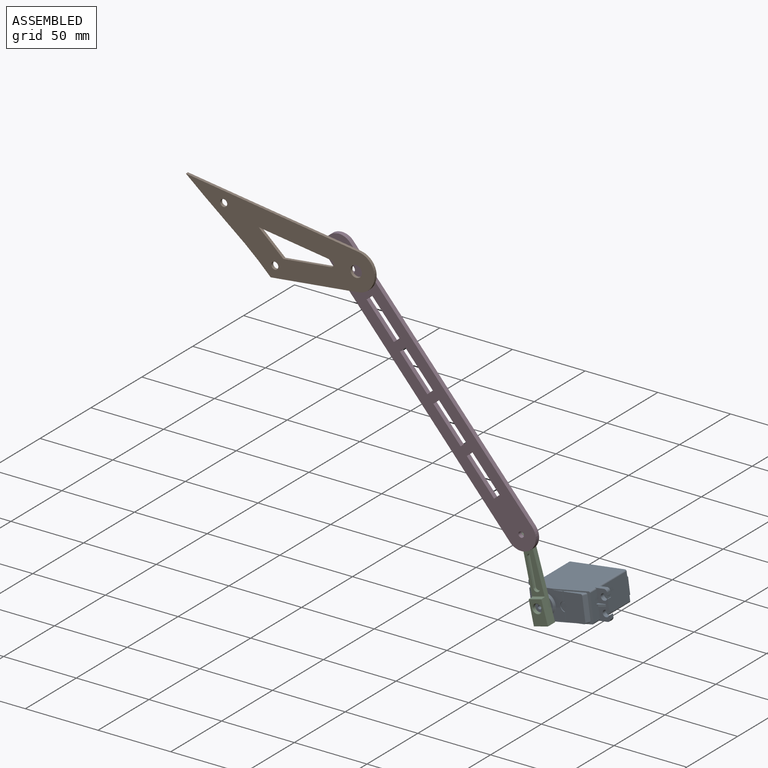
[diagram: assembled view]
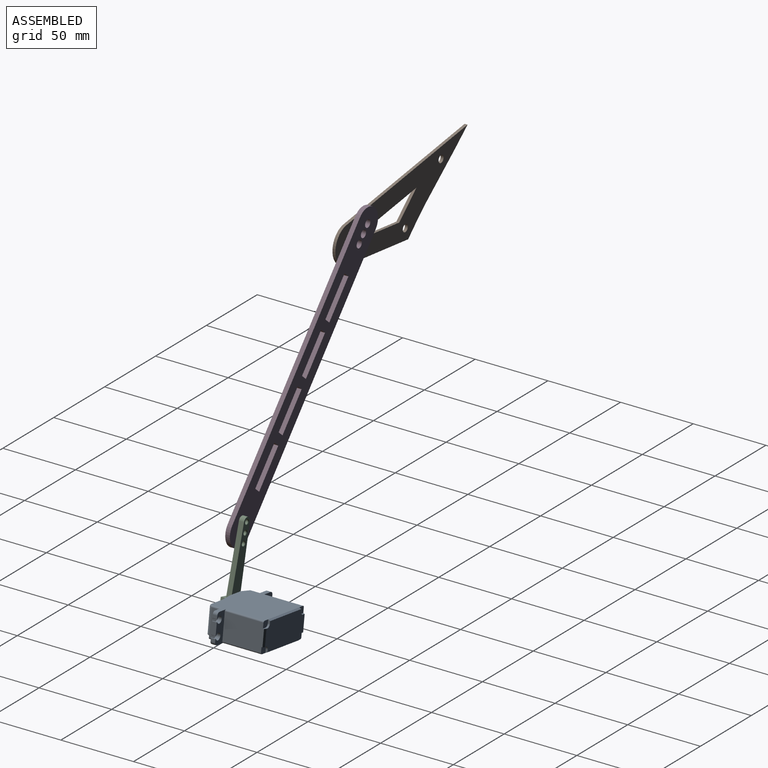
[diagram: assembled view, second angle]
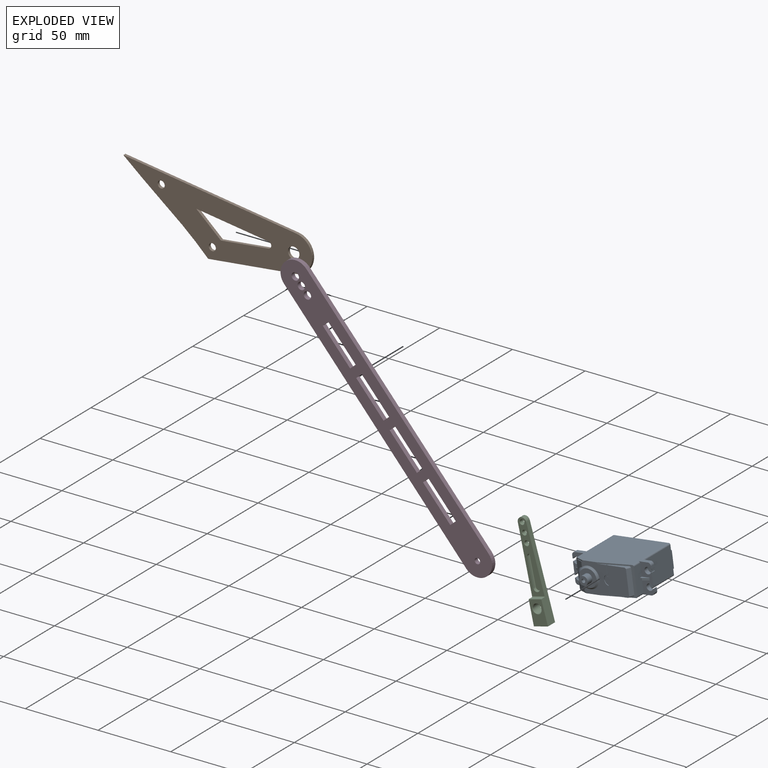
[diagram: exploded view]
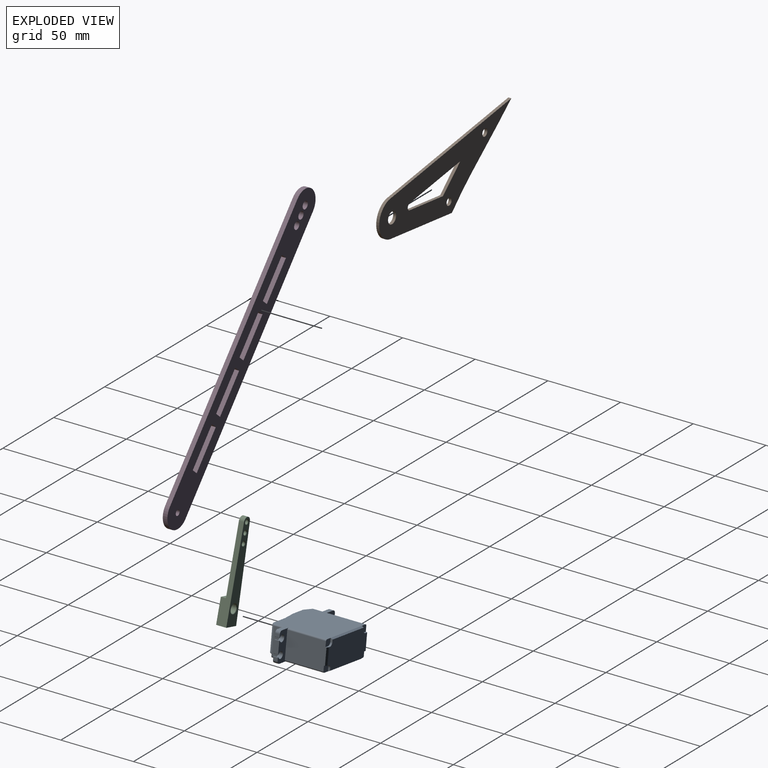
[diagram: exploded view, second angle]
ASSEMBLY  parts=4 mates=2
PART A: 134 faces, bbox 54.6x46.2x20 mm
  f0: plane 20x16.9mm, normal (0,-1,0), area 174.7mm2, adj f17,f19,f67,f68,f69,f70,f79,f80
  f1: plane 8.18x4.66mm, normal (0.45,-0.89,0), area 25.2mm2, adj f66,f67,f110,f112,f120
  f2: plane 23.43x20mm, normal (-0.14,-0.99,0), area 74.5mm2, adj f17,f19,f24,f69,f70,f71,f105,f108
  f3: plane 20x6.29mm, normal (0.45,-0.89,0), area 29.3mm2, adj f17,f19,f27,f66,f67,f68,f106,f109
  f4: plane 3.13x2mm, normal (-1,0,0), area 6.3mm2, adj f15,f25,f60,f126
  f5: plane 8x3.13mm, normal (-1,0,0), area 25mm2, adj f15,f25,f55,f58
  f6: plane 3.13x2mm, normal (1,0,0), area 6.3mm2, adj f23,f26,f48,f128
  f7: plane 8x3.13mm, normal (1,0,0), area 25mm2, adj f23,f26,f44,f47
  f8: plane 38x6.6mm, normal (0,0,1), area 250.8mm2, adj f12,f30,f39,f96,f102,f130
  f9: plane 20x18mm, normal (-1,0,0), area 360mm2, adj f14,f15,f95,f97
  f10: plane 20x18mm, normal (1,0,0), area 360mm2, adj f22,f23,f99,f101
  f11: plane 38x6.6mm, normal (0,0,-1), area 250.8mm2, adj f13,f33,f36,f98,f100,f131
  f12: plane 38x20mm, normal (0,0,1), area 760mm2, adj f8,f19,f95,f101
  f13: plane 38x20mm, normal (0,0,-1), area 760mm2, adj f11,f17,f97,f99
  f14: plane 18x7.3mm, normal (-1,0,0), area 126.5mm2, adj f9,f35,f36,f37,f39,f96,f98,f132
  f15: plane 20x8.31mm, normal (0,1,0), area 111.9mm2, adj f4,f5,f9,f16,f17,f19,f55,f56
  f16: plane 3.13x2mm, normal (-1,0,0), area 6.3mm2, adj f15,f25,f56,f127
  f17: plane 50.61x12.5mm, normal (0,0,-1), area 471.9mm2, adj f0,f2,f3,f13,f15,f23,f25,f26
  f18: plane 3.13x2mm, normal (1,0,0), area 6.3mm2, adj f23,f26,f46,f129
  f19: plane 50.61x12.5mm, normal (0,0,1), area 471.9mm2, adj f0,f2,f3,f12,f15,f23,f25,f26
  f20: plane 18.3x15.3mm, normal (0,-1,0), area 243.8mm2, adj f69,f70,f71,f82,f83,f84,f103,f104
  f21: plane 37.9x18.6mm, normal (0,1,0), area 656.8mm2, adj f28,f29,f31,f32,f34,f35,f37,f38
  f22: plane 18x6.6mm, normal (1,0,0), area 90.8mm2, adj f10,f30,f33,f86,f87,f88,f89,f100
  f23: plane 20x8.31mm, normal (0,1,0), area 111.9mm2, adj f6,f7,f10,f17,f18,f19,f44,f45
  f24: plane 18x6.12mm, normal (-1,0,0), area 107.5mm2, adj f2,f25,f61,f64,f65,f116,f118
  f25: plane 20x8.31mm, normal (0,-1,0), area 103.7mm2, adj f4,f5,f16,f17,f19,f24,f55,f56
  f26: plane 20x8.31mm, normal (0,-1,0), area 103.7mm2, adj f6,f7,f17,f18,f19,f27,f44,f45
  f27: plane 18x6.12mm, normal (1,0,0), area 107.5mm2, adj f3,f26,f52,f53,f54,f111,f117
  f28: plane 2.25x1.4mm, normal (1,0,0), area 2.7mm2, adj f21,f30,f43,f130
  f29: plane 2.25x1.4mm, normal (0,0,1), area 2.7mm2, adj f21,f30,f43,f133
  f30: plane 4.5x4.5mm, normal (0,1,0), area 18.9mm2, adj f8,f22,f28,f29,f43,f102
  f31: plane 2.25x1.4mm, normal (0,0,-1), area 2.7mm2, adj f21,f33,f42,f133
  f32: plane 2.25x1.4mm, normal (1,0,0), area 2.7mm2, adj f21,f33,f42,f131
  f33: plane 4.5x4.5mm, normal (0,1,0), area 18.9mm2, adj f11,f22,f31,f32,f42,f100
  f34: plane 2.25x1.4mm, normal (-1,0,0), area 2.7mm2, adj f21,f36,f41,f131
  f35: plane 2.25x1.4mm, normal (0,0,-1), area 2.7mm2, adj f14,f21,f36,f41,f132
  f36: plane 4.5x4.5mm, normal (0,1,0), area 18.9mm2, adj f11,f14,f34,f35,f41,f98
  f37: plane 2.25x1.4mm, normal (0,0,1), area 2.7mm2, adj f14,f21,f39,f40,f132
  f38: plane 2.25x1.4mm, normal (-1,0,0), area 2.7mm2, adj f21,f39,f40,f130
  f39: plane 4.5x4.5mm, normal (0,1,0), area 18.9mm2, adj f8,f14,f37,f38,f40,f96
  f40: cylinder r=2.25mm len=2.25mm, axis (0,-1,0), area 4.9mm2, adj f21,f37,f38,f39
  f41: cylinder r=2.25mm len=2.25mm, axis (0,-1,0), area 4.9mm2, adj f21,f34,f35,f36
  f42: cylinder r=2.25mm len=2.25mm, axis (0,-1,0), area 4.9mm2, adj f21,f31,f32,f33
  f43: cylinder r=2.25mm len=2.25mm, axis (0,-1,0), area 4.9mm2, adj f21,f28,f29,f30
  f44: cylinder r=0.25mm len=3.13mm, axis (0,-1,0), area 2.2mm2, adj f7,f23,f26,f45
  f45: cylinder r=2.25mm len=4.5mm, axis (0,-1,0), area 38.5mm2, adj f23,f26,f44,f46
  f46: cylinder r=0.25mm len=3.13mm, axis (0,-1,0), area 2.2mm2, adj f18,f23,f26,f45
  f47: cylinder r=0.25mm len=3.13mm, axis (0,-1,0), area 2.2mm2, adj f7,f23,f26,f49
  f48: cylinder r=0.25mm len=3.13mm, axis (0,-1,0), area 2.2mm2, adj f6,f23,f26,f49
  f49: cylinder r=2.25mm len=4.5mm, axis (0,-1,0), area 38.5mm2, adj f23,f26,f47,f48
  f50: plane 1.5x0.35mm, normal (1,0,0), area 0.5mm2, adj f26,f51,f53,f54
  f51: plane 4.28x1.5mm, normal (0.31,-0.95,0), area 6.8mm2, adj f50,f52,f53,f54
  f52: plane 1.5x1.22mm, normal (0,-1,0), area 1.8mm2, adj f27,f51,f53,f54
  f53: plane 5.5x1.75mm, normal (0,0,-1), area 6.6mm2, adj f26,f27,f50,f51,f52
  f54: plane 5.5x1.75mm, normal (0,0,1), area 6.6mm2, adj f26,f27,f50,f51,f52
  f55: cylinder r=0.25mm len=3.13mm, axis (0,-1,0), area 2.2mm2, adj f5,f15,f25,f57
  f56: cylinder r=0.25mm len=3.13mm, axis (0,-1,0), area 2.2mm2, adj f15,f16,f25,f57
  f57: cylinder r=2.25mm len=4.5mm, axis (0,-1,0), area 38.5mm2, adj f15,f25,f55,f56
  f58: cylinder r=0.25mm len=3.13mm, axis (0,-1,0), area 2.2mm2, adj f5,f15,f25,f59
  f59: cylinder r=2.25mm len=4.5mm, axis (0,-1,0), area 38.5mm2, adj f15,f25,f58,f60
  f60: cylinder r=0.25mm len=3.13mm, axis (0,-1,0), area 2.2mm2, adj f4,f15,f25,f59
  f61: plane 1.5x1.22mm, normal (0,-1,0), area 1.8mm2, adj f24,f62,f64,f65
  f62: plane 4.28x1.5mm, normal (-0.31,-0.95,0), area 6.8mm2, adj f61,f63,f64,f65
  f63: plane 1.5x0.35mm, normal (-1,0,0), area 0.5mm2, adj f25,f62,f64,f65
  f64: plane 5.5x1.75mm, normal (0,0,-1), area 6.6mm2, adj f24,f25,f61,f62,f63
  f65: plane 5.5x1.75mm, normal (0,0,1), area 6.6mm2, adj f24,f25,f61,f62,f63
  f66: plane 16.3x0.39mm, normal (1,0,0), area 6.4mm2, adj f1,f3,f72,f112,f113,f119,f121
  f67: plane 4.89x2.33mm, normal (0,0,-1), area 1.7mm2, adj f0,f1,f3,f109,f110,f112
  f68: plane 4.89x2.33mm, normal (0,0,1), area 1.7mm2, adj f0,f3,f72,f106,f107,f113
  f69: plane 20.52x2.83mm, normal (0,0,-1), area 26.4mm2, adj f0,f2,f20,f81,f82,f85,f108,f115
  f70: plane 20.52x2.83mm, normal (0,0,1), area 26.4mm2, adj f0,f2,f20,f79,f84,f85,f105,f114
  f71: plane 16.3x2.99mm, normal (-0.89,-0.45,0), area 54.6mm2, adj f2,f20,f114,f115
  f72: plane 8.18x4.66mm, normal (0.45,-0.89,0), area 25.2mm2, adj f66,f68,f107,f113,f123
  f73: plane 12x12mm, normal (0,-1,0), area 84.8mm2, adj f74,f75
  f74: cone r=6mm half-angle=40.9deg, axis (0,1,0), area 84.8mm2, adj f73,f119,f120,f121,f122,f123,f124,f125
  f75: cylinder r=3mm len=6mm, axis (0,1,0), area 84.8mm2, adj f73,f76
  f76: plane 6x6mm, normal (0,-1,0), area 23.4mm2, adj f75,f78
  f77: cone r=1.25mm half-angle=59deg, axis (0,-1,0), area 5.7mm2, adj f78
  f78: cylinder r=1.25mm len=10mm, axis (0,-1,0), area 78.5mm2, adj f76,f77
  f79: plane 5.8x0.5mm, normal (-1,0,0), area 2.9mm2, adj f0,f70,f80,f85
  f80: cylinder r=3.5mm len=6.71mm, axis (0,-1,0), area 4.5mm2, adj f0,f79,f81,f85
  f81: plane 5.8x0.5mm, normal (-1,0,0), area 2.9mm2, adj f0,f69,f80,f85
  f82: plane 5.8x0.5mm, normal (1,0,0), area 2.9mm2, adj f20,f69,f85,f103
  f83: cylinder r=2.5mm len=4.79mm, axis (0,-1,0), area 3.2mm2, adj f20,f85,f103,f104
  f84: plane 5.8x0.5mm, normal (1,0,0), area 2.9mm2, adj f20,f70,f85,f104
  f85: plane 18.3x3.5mm, normal (0,-1,0), area 20.6mm2, adj f69,f70,f79,f80,f81,f82,f83,f84
  f86: plane 7x1mm, normal (0,1,0), area 7mm2, adj f22,f87,f89,f91
  f87: plane 4x1mm, normal (0,0,1), area 4mm2, adj f22,f86,f88,f93
  f88: plane 7x1mm, normal (0,-1,0), area 7mm2, adj f22,f87,f89,f92
  f89: plane 4x1mm, normal (0,0,-1), area 4mm2, adj f22,f86,f88,f94
  f90: plane 6x2.5mm, normal (1,0,0), area 15mm2, adj f91,f92,f93,f94
  f91: plane 7x2.25mm, normal (0.32,0.95,0), area 15.4mm2, adj f86,f90,f93,f94
  f92: plane 7x2.25mm, normal (0.32,-0.95,0), area 15.4mm2, adj f88,f90,f93,f94
  f93: plane 4x2.25mm, normal (0.22,0,0.98), area 7.5mm2, adj f87,f90,f91,f92
  f94: plane 4x2.25mm, normal (0.22,0,-0.98), area 7.5mm2, adj f89,f90,f91,f92
  f95: cylinder r=1mm len=20mm, axis (0,1,0), area 31.4mm2, adj f9,f12,f15,f96
  f96: cylinder r=1mm len=6.6mm, axis (0,1,0), area 10.4mm2, adj f8,f14,f39,f95
  f97: cylinder r=1mm len=20mm, axis (0,-1,0), area 31.4mm2, adj f9,f13,f15,f98
  f98: cylinder r=1mm len=6.6mm, axis (0,-1,0), area 10.4mm2, adj f11,f14,f36,f97
  f99: cylinder r=1mm len=20mm, axis (0,1,0), area 31.4mm2, adj f10,f13,f23,f100
  f100: cylinder r=1mm len=6.6mm, axis (0,1,0), area 10.4mm2, adj f11,f22,f33,f99
  f101: cylinder r=1mm len=20mm, axis (0,-1,0), area 31.4mm2, adj f10,f12,f23,f102
  f102: cylinder r=1mm len=6.6mm, axis (0,-1,0), area 10.4mm2, adj f8,f22,f30,f101
  f103: cylinder r=1mm len=0.96mm, axis (0,-1,0), area 0.6mm2, adj f20,f82,f83,f85
  f104: cylinder r=1mm len=0.96mm, axis (0,-1,0), area 0.6mm2, adj f20,f83,f84,f85
  f105: cylinder r=1mm len=0.85mm, axis (0,0,1), area 0.1mm2, adj f0,f2,f19,f70
  f106: cylinder r=1mm len=0.85mm, axis (0,0,1), area 0.4mm2, adj f0,f3,f19,f68
  f107: cylinder r=1mm len=3.44mm, axis (0,0,1), area 1.5mm2, adj f0,f68,f72,f125
  f108: cylinder r=1mm len=0.85mm, axis (0,0,1), area 0.1mm2, adj f0,f2,f17,f69
  f109: cylinder r=1mm len=0.85mm, axis (0,0,1), area 0.4mm2, adj f0,f3,f17,f67
  f110: cylinder r=1mm len=3.44mm, axis (0,0,1), area 1.5mm2, adj f0,f1,f67,f122
  f111: cylinder r=1mm len=6.62mm, axis (0,1,0), area 9.9mm2, adj f3,f17,f26,f27
  f112: cylinder r=1mm len=1mm, axis (0,-1,0), area 0.6mm2, adj f1,f3,f66,f67
  f113: cylinder r=1mm len=1mm, axis (0,-1,0), area 0.6mm2, adj f3,f66,f68,f72
  f114: cylinder r=1mm len=3.89mm, axis (-0.45,0.89,0), area 5.2mm2, adj f2,f20,f70,f71
  f115: cylinder r=1mm len=3.89mm, axis (-0.45,0.89,0), area 5.2mm2, adj f2,f20,f69,f71
  f116: cylinder r=1mm len=6.26mm, axis (0,-1,0), area 9.7mm2, adj f2,f17,f24,f25
  f117: cylinder r=1mm len=6.62mm, axis (0,-1,0), area 9.9mm2, adj f3,f19,f26,f27
  f118: cylinder r=1mm len=6.26mm, axis (0,1,0), area 9.7mm2, adj f2,f19,f24,f25
  f119: bspline ~1.28x0.21mm, area 0.1mm2, adj f66,f74,f120
  f120: bspline ~4.77x4.68mm, area 1.8mm2, adj f1,f74,f119,f122
  f121: bspline ~1.28x0.21mm, area 0.1mm2, adj f66,f74,f123
  f122: bspline ~0.92x0.72mm, area 0.2mm2, adj f74,f110,f120,f124
  f123: bspline ~4.77x4.68mm, area 1.8mm2, adj f72,f74,f121,f125
  f124: torus R=7.27mm, axis (0,-1,0), area 13.1mm2, adj f0,f74,f122,f125
  f125: bspline ~1.07x0.94mm, area 0.2mm2, adj f74,f107,f123,f124
  f126: cylinder r=2mm len=3.13mm, axis (0,1,0), area 9.8mm2, adj f4,f15,f17,f25
  f127: cylinder r=2mm len=3.13mm, axis (0,1,0), area 9.8mm2, adj f15,f16,f19,f25
  f128: cylinder r=2mm len=3.13mm, axis (0,1,0), area 9.8mm2, adj f6,f17,f23,f26
  f129: cylinder r=2mm len=3.13mm, axis (0,1,0), area 9.8mm2, adj f18,f19,f23,f26
  f130: plane 31x1.4mm, normal (0,0.45,0.89), area 48.5mm2, adj f8,f21,f28,f38
  f131: plane 31x1.4mm, normal (0,0.45,-0.89), area 48.5mm2, adj f11,f21,f32,f34
  f132: plane 11x1.4mm, normal (-0.45,0.89,0), area 17.2mm2, adj f14,f21,f35,f37
  f133: plane 11x1.4mm, normal (0.89,0.45,0), area 17.2mm2, adj f21,f22,f29,f31
PART B: 13 faces, bbox 112.1x2x81.5 mm
  f0: plane 112.06x81.5mm, normal (0,-1,0), area 2863.8mm2, adj f1,f2,f3,f4,f5,f6,f7,f8
  f1: plane 38.05x32.76mm, normal (0.65,0,-0.76), area 102mm2, adj f0,f2,f8,f9
  f2: cylinder r=2.23mm len=3.68mm, axis (0,1,0), area 13.1mm2, adj f0,f1,f3,f9
  f3: plane 27.08x18.77mm, normal (-0.82,0,0.57), area 67mm2, adj f0,f2,f8,f9
  f4: extruded ~75.28x11.78mm, area 154.9mm2, adj f0,f5,f7,f9
  f5: plane 49.78x34.51mm, normal (0.82,0,-0.57), area 123.1mm2, adj f0,f4,f6,f9
  f6: cylinder r=12.7mm len=20.99mm, axis (0,1,0), area 74.5mm2, adj f0,f5,f7,f9
  f7: plane 91.07x78.42mm, normal (-0.65,0,0.76), area 244.2mm2, adj f0,f4,f6,f9
  f8: plane 22.56x2.73mm, normal (-0.12,0,0.99), area 46.2mm2, adj f0,f1,f3,f9
  f9: plane 112.06x81.5mm, normal (0,1,0), area 2863.8mm2, adj f1,f2,f3,f4,f5,f6,f7,f8
  f10: cylinder r=2.46mm len=4.92mm, axis (0,-1,0), area 31.4mm2, adj f0,f9
  f11: cylinder r=2.46mm len=4.92mm, axis (0,-1,0), area 31.4mm2, adj f0,f9
  f12: cylinder r=3.97mm len=7.94mm, axis (0,1,0), area 50.7mm2, adj f0,f9
PART C: 30 faces, bbox 64.4x7x10 mm
  f0: plane 61.45x7.01mm, normal (0.03,0,1), area 272.5mm2, adj f2,f3,f4,f9,f10,f11,f21
  f1: plane 61.45x7.01mm, normal (0.03,0,-1), area 272.5mm2, adj f2,f3,f4,f9,f10,f11,f21
  f2: plane 16.35x10mm, normal (0,1,0), area 121.6mm2, adj f0,f1,f4,f10,f22
  f3: cylinder r=3mm len=6mm, axis (0,1,0), area 32.3mm2, adj f0,f1,f9,f11
  f4: plane 10x7mm, normal (-1,0,0), area 70mm2, adj f0,f1,f2,f9
  f5: cylinder r=1.5mm len=3mm, axis (0,1,0), area 28.3mm2, adj f24,f25
  f6: cylinder r=1.5mm len=3mm, axis (0,1,0), area 28.3mm2, adj f26,f27
  f7: cylinder r=1.5mm len=3mm, axis (0,1,0), area 28.3mm2, adj f28,f29
  f8: cylinder r=3mm len=6.5mm, axis (0,1,0), area 122.5mm2, adj f22,f23
  f9: plane 64.35x10mm, normal (0,-1,0), area 443mm2, adj f0,f1,f3,f4,f23,f24,f26,f28
  f10: plane 8.94x3mm, normal (1,0,0), area 26.8mm2, adj f0,f1,f2,f21
  f11: plane 47.5x8.9mm, normal (0,1,0), area 228.8mm2, adj f0,f1,f3,f12,f13,f14,f15,f21
  f12: cylinder r=2.29mm len=4.59mm, axis (0,1,0), area 11mm2, adj f11,f13,f15,f19
  f13: plane 18.98x1.5mm, normal (-0.03,0,1), area 28.5mm2, adj f11,f12,f14,f20
  f14: cylinder r=1.68mm len=3.35mm, axis (0,1,0), area 7.7mm2, adj f11,f13,f15,f18
  f15: plane 18.98x1.5mm, normal (-0.03,0,-1), area 28.5mm2, adj f11,f12,f14,f17
  f16: plane 21.97x3.59mm, normal (0,1,0), area 63.7mm2, adj f17,f18,f19,f20
  f17: cylinder r=0.5mm len=19mm, axis (1,0,-0.03), area 14.9mm2, adj f15,f16,f18,f19
  f18: torus R=1.18mm, axis (0,1,0), area 3.6mm2, adj f14,f16,f17,f20
  f19: torus R=1.79mm, axis (0,1,0), area 5.3mm2, adj f12,f16,f17,f20
  f20: cylinder r=0.5mm len=19mm, axis (-1,0,-0.03), area 14.9mm2, adj f13,f16,f18,f19
  f21: cylinder r=0.5mm len=8.94mm, axis (0,0,-1), area 7mm2, adj f0,f1,f10,f11
  f22: cone r=3.25mm half-angle=45deg, axis (0,1,0), area 6.9mm2, adj f2,f8
  f23: cone r=3mm half-angle=45deg, axis (0,-1,0), area 6.9mm2, adj f8,f9
  f24: cone r=1.5mm half-angle=45deg, axis (0,-1,0), area 3.6mm2, adj f5,f9
  f25: cone r=1.75mm half-angle=45deg, axis (0,1,0), area 3.6mm2, adj f5,f11
  f26: cone r=1.5mm half-angle=45deg, axis (0,-1,0), area 3.6mm2, adj f6,f9
  f27: cone r=1.75mm half-angle=45deg, axis (0,1,0), area 3.6mm2, adj f6,f11
  f28: cone r=1.5mm half-angle=45deg, axis (0,-1,0), area 3.6mm2, adj f7,f9
  f29: cone r=1.75mm half-angle=45deg, axis (0,1,0), area 3.6mm2, adj f7,f11
PART D: 26 faces, bbox 210.8x3.2x20.3 mm
  f0: plane 210.82x20.32mm, normal (0,-1,0), area 3541.9mm2, adj f2,f3,f4,f5,f6,f7,f8,f9
  f1: plane 210.82x20.32mm, normal (0,1,0), area 3541.9mm2, adj f2,f3,f4,f5,f6,f7,f8,f9
  f2: cylinder r=10.16mm len=20.32mm, axis (0,1,0), area 101.3mm2, adj f0,f1,f3,f5
  f3: plane 190.5x3.18mm, normal (0,0,-1), area 604.8mm2, adj f0,f1,f2,f4
  f4: cylinder r=10.16mm len=20.32mm, axis (0,1,0), area 101.3mm2, adj f0,f1,f3,f5
  f5: plane 190.5x3.18mm, normal (0,0,1), area 604.8mm2, adj f0,f1,f2,f4
  f6: plane 5.08x3.18mm, normal (1,0,0), area 16.1mm2, adj f0,f1,f7,f9
  f7: plane 28.58x3.18mm, normal (0,0,1), area 90.7mm2, adj f0,f1,f6,f8
  f8: plane 5.08x3.18mm, normal (-1,0,0), area 16.1mm2, adj f0,f1,f7,f9
  f9: plane 28.58x3.18mm, normal (0,0,-1), area 90.7mm2, adj f0,f1,f6,f8
  f10: plane 5.08x3.18mm, normal (1,0,0), area 16.1mm2, adj f0,f1,f11,f13
  f11: plane 28.58x3.18mm, normal (0,0,1), area 90.7mm2, adj f0,f1,f10,f12
  f12: plane 5.08x3.18mm, normal (-1,0,0), area 16.1mm2, adj f0,f1,f11,f13
  f13: plane 28.58x3.18mm, normal (0,0,-1), area 90.7mm2, adj f0,f1,f10,f12
  f14: plane 5.08x3.18mm, normal (1,0,0), area 16.1mm2, adj f0,f1,f15,f17
  f15: plane 28.58x3.18mm, normal (0,0,1), area 90.7mm2, adj f0,f1,f14,f16
  f16: plane 5.08x3.18mm, normal (-1,0,0), area 16.1mm2, adj f0,f1,f15,f17
  f17: plane 28.58x3.18mm, normal (0,0,-1), area 90.7mm2, adj f0,f1,f14,f16
  f18: plane 5.08x3.18mm, normal (1,0,0), area 16.1mm2, adj f0,f1,f19,f21
  f19: plane 28.58x3.18mm, normal (0,0,1), area 90.7mm2, adj f0,f1,f18,f20
  f20: plane 5.08x3.18mm, normal (-1,0,0), area 16.1mm2, adj f0,f1,f19,f21
  f21: plane 28.58x3.18mm, normal (0,0,-1), area 90.7mm2, adj f0,f1,f18,f20
  f22: cylinder r=2.55mm len=5.11mm, axis (0,-1,0), area 50.9mm2, adj f0,f1
  f23: cylinder r=2.55mm len=5.11mm, axis (0,-1,0), area 50.9mm2, adj f0,f1
  f24: cylinder r=2.55mm len=5.11mm, axis (0,-1,0), area 50.9mm2, adj f0,f1
  f25: cylinder r=1.9mm len=3.8mm, axis (0,-1,0), area 37.9mm2, adj f0,f1
PLACE A rot(axis=(0,1,0),172.2deg) t=(341.16,-357.35,297.89)mm fixed
PLACE B rot(axis=(0,1,0),48.9deg) t=(104.26,-406.36,475.99)mm
PLACE C rot(axis=(-0.61,0,-0.79),180deg) t=(331.25,-406.05,296.53)mm
PLACE D rot(axis=(0,1,0),48.9deg) t=(257.4,-402.55,411.29)mm
MATE revolute C.f8 <-> A.f74  axis (0,1,0) through (331.25,-399.05,296.53)mm
MATE revolute D.f4 <-> C.f6  axis (0,1,0) through (320.06,-402.55,339.55)mm
